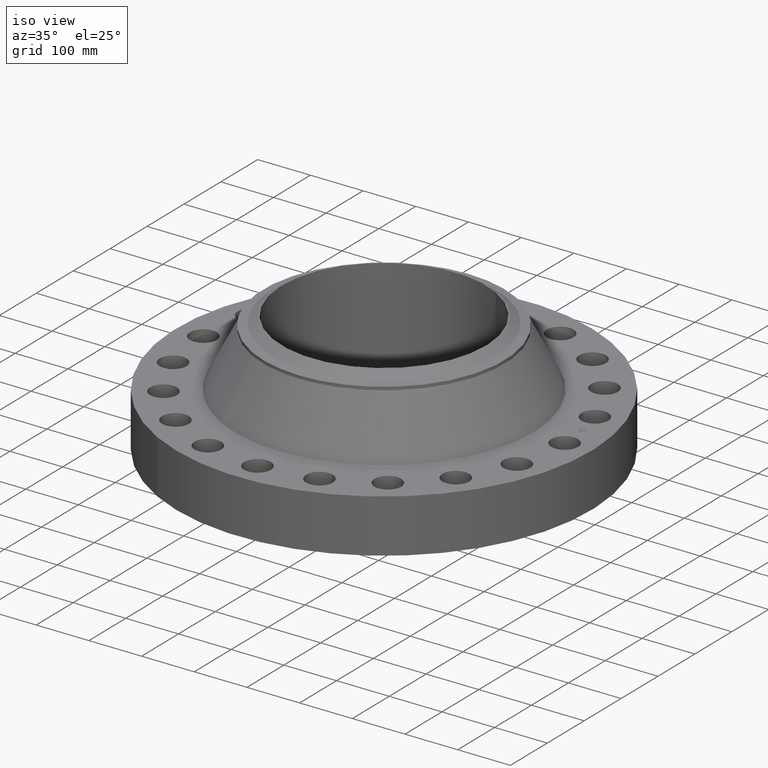
[diagram: clean part render]
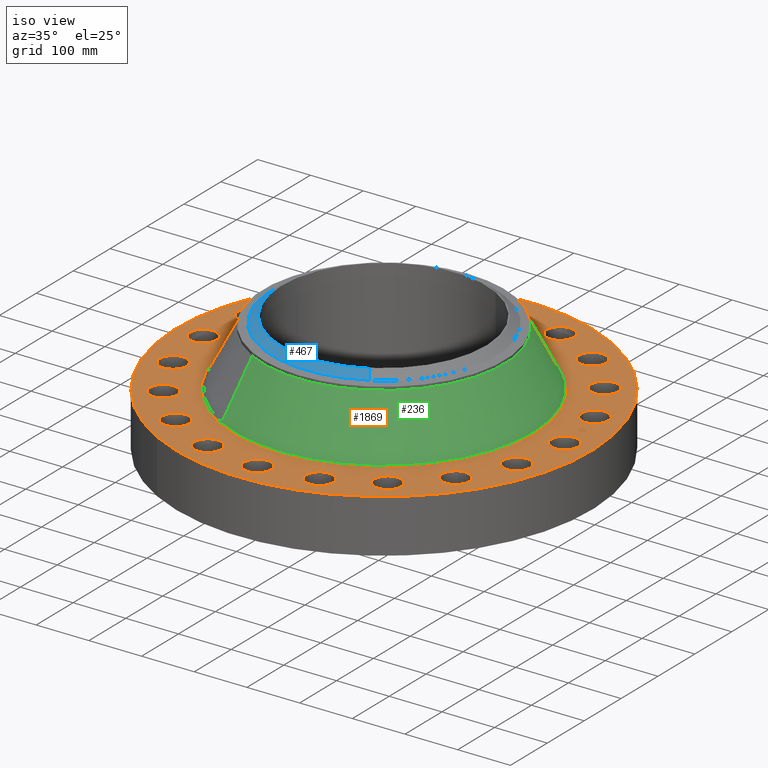
[diagram: same view with three faces highlighted in distinct colors, each labeled with its STEP entity id]
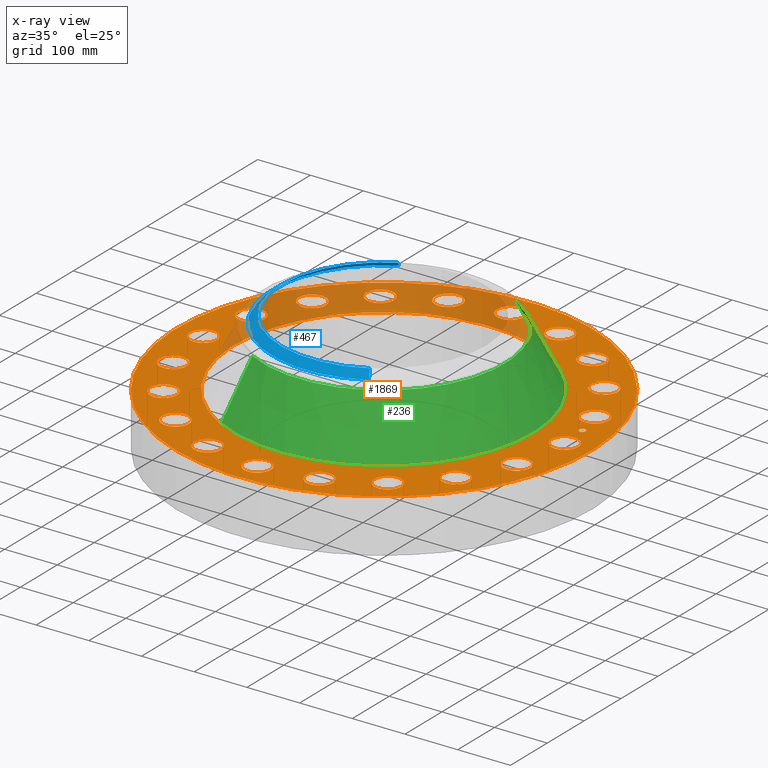
[diagram: x-ray of the same camera — body ghosted, the three highlighted faces saturated]
A machine part, iso view with three faces highlighted in distinct colors.
The next image is the same camera in x-ray (body ghosted, the three faces saturated) — at least one of them is partly hidden behind the body in this view.
Their STEP definitions:

[orange] entity #1869 — the highlighted planar face has unit normal (0, 0, -1).
#65=AXIS2_PLACEMENT_3D('Circle Axis2P3D',#63,#64,$) ;
#82=AXIS2_PLACEMENT_3D('Circle Axis2P3D',#80,#81,$) ;
#115=AXIS2_PLACEMENT_3D('Circle Axis2P3D',#113,#114,$) ;
#139=AXIS2_PLACEMENT_3D('Circle Axis2P3D',#137,#138,$) ;
#156=AXIS2_PLACEMENT_3D('Circle Axis2P3D',#154,#155,$) ;
#191=AXIS2_PLACEMENT_3D('Circle Axis2P3D',#189,#190,$) ;
#962=AXIS2_PLACEMENT_3D('Circle Axis2P3D',#960,#961,$) ;
#974=AXIS2_PLACEMENT_3D('Circle Axis2P3D',#972,#973,$) ;
#1005=AXIS2_PLACEMENT_3D('Circle Axis2P3D',#1003,#1004,$) ;
#1017=AXIS2_PLACEMENT_3D('Circle Axis2P3D',#1015,#1016,$) ;
#1048=AXIS2_PLACEMENT_3D('Circle Axis2P3D',#1046,#1047,$) ;
#1060=AXIS2_PLACEMENT_3D('Circle Axis2P3D',#1058,#1059,$) ;
#1091=AXIS2_PLACEMENT_3D('Circle Axis2P3D',#1089,#1090,$) ;
#1103=AXIS2_PLACEMENT_3D('Circle Axis2P3D',#1101,#1102,$) ;
#1134=AXIS2_PLACEMENT_3D('Circle Axis2P3D',#1132,#1133,$) ;
#1146=AXIS2_PLACEMENT_3D('Circle Axis2P3D',#1144,#1145,$) ;
#1177=AXIS2_PLACEMENT_3D('Circle Axis2P3D',#1175,#1176,$) ;
#1189=AXIS2_PLACEMENT_3D('Circle Axis2P3D',#1187,#1188,$) ;
#1220=AXIS2_PLACEMENT_3D('Circle Axis2P3D',#1218,#1219,$) ;
#1232=AXIS2_PLACEMENT_3D('Circle Axis2P3D',#1230,#1231,$) ;
#1263=AXIS2_PLACEMENT_3D('Circle Axis2P3D',#1261,#1262,$) ;
#1275=AXIS2_PLACEMENT_3D('Circle Axis2P3D',#1273,#1274,$) ;
#1306=AXIS2_PLACEMENT_3D('Circle Axis2P3D',#1304,#1305,$) ;
#1318=AXIS2_PLACEMENT_3D('Circle Axis2P3D',#1316,#1317,$) ;
#1349=AXIS2_PLACEMENT_3D('Circle Axis2P3D',#1347,#1348,$) ;
#1361=AXIS2_PLACEMENT_3D('Circle Axis2P3D',#1359,#1360,$) ;
#1392=AXIS2_PLACEMENT_3D('Circle Axis2P3D',#1390,#1391,$) ;
#1404=AXIS2_PLACEMENT_3D('Circle Axis2P3D',#1402,#1403,$) ;
#1435=AXIS2_PLACEMENT_3D('Circle Axis2P3D',#1433,#1434,$) ;
#1447=AXIS2_PLACEMENT_3D('Circle Axis2P3D',#1445,#1446,$) ;
#1478=AXIS2_PLACEMENT_3D('Circle Axis2P3D',#1476,#1477,$) ;
#1490=AXIS2_PLACEMENT_3D('Circle Axis2P3D',#1488,#1489,$) ;
#1521=AXIS2_PLACEMENT_3D('Circle Axis2P3D',#1519,#1520,$) ;
#1533=AXIS2_PLACEMENT_3D('Circle Axis2P3D',#1531,#1532,$) ;
#1564=AXIS2_PLACEMENT_3D('Circle Axis2P3D',#1562,#1563,$) ;
#1576=AXIS2_PLACEMENT_3D('Circle Axis2P3D',#1574,#1575,$) ;
#1607=AXIS2_PLACEMENT_3D('Circle Axis2P3D',#1605,#1606,$) ;
#1619=AXIS2_PLACEMENT_3D('Circle Axis2P3D',#1617,#1618,$) ;
#1650=AXIS2_PLACEMENT_3D('Circle Axis2P3D',#1648,#1649,$) ;
#1662=AXIS2_PLACEMENT_3D('Circle Axis2P3D',#1660,#1661,$) ;
#1693=AXIS2_PLACEMENT_3D('Circle Axis2P3D',#1691,#1692,$) ;
#1705=AXIS2_PLACEMENT_3D('Circle Axis2P3D',#1703,#1704,$) ;
#1736=AXIS2_PLACEMENT_3D('Circle Axis2P3D',#1734,#1735,$) ;
#1748=AXIS2_PLACEMENT_3D('Circle Axis2P3D',#1746,#1747,$) ;
#1761=AXIS2_PLACEMENT_3D('Plane Axis2P3D',#1758,#1759,#1760) ;
#1853=AXIS2_PLACEMENT_3D('Circle Axis2P3D',#1851,#1852,$) ;
#1862=AXIS2_PLACEMENT_3D('Circle Axis2P3D',#1860,#1861,$) ;
#46=CARTESIAN_POINT('Vertex',(12.6224174382,0.479425538606,4.00000000002)) ;
#60=CARTESIAN_POINT('Vertex',(14.3775825619,-0.479425538606,4.00000000002)) ;
#63=CARTESIAN_POINT('Axis2P3D Location',(13.5000000001,0.,4.00000000002)) ;
#80=CARTESIAN_POINT('Axis2P3D Location',(13.5000000001,0.,4.00000000002)) ;
#110=CARTESIAN_POINT('Vertex',(-7.43109584839,-13.6025297094,4.00000000002)) ;
#113=CARTESIAN_POINT('Axis2P3D Location',(0.,0.,4.00000000002)) ;
#117=CARTESIAN_POINT('Vertex',(7.43109584839,13.6025297094,4.00000000002)) ;
#137=CARTESIAN_POINT('Axis2P3D Location',(0.,0.,4.00000000002)) ;
#154=CARTESIAN_POINT('Axis2P3D Location',(0.,0.,4.00000000002)) ;
#158=CARTESIAN_POINT('Vertex',(5.36874508113,9.82742195202,4.00000000002)) ;
#160=CARTESIAN_POINT('Vertex',(-5.36874508113,-9.82742195202,4.00000000002)) ;
#189=CARTESIAN_POINT('Axis2P3D Location',(0.,0.,4.00000000002)) ;
#950=CARTESIAN_POINT('Vertex',(-12.1527829949,3.44458071592,4.00000000002)) ;
#957=CARTESIAN_POINT('Vertex',(-13.5257429451,4.89887813224,4.00000000002)) ;
#960=CARTESIAN_POINT('Axis2P3D Location',(-12.83926297,4.17172942408,4.00000000002)) ;
#972=CARTESIAN_POINT('Axis2P3D Location',(-12.83926297,4.17172942408,4.00000000002)) ;
#993=CARTESIAN_POINT('Vertex',(10.4935494787,-7.03140741016,4.00000000002)) ;
#1000=CARTESIAN_POINT('Vertex',(11.3499093695,-8.8387944018,4.00000000002)) ;
#1003=CARTESIAN_POINT('Axis2P3D Location',(10.9217294241,-7.93510090598,4.00000000002)) ;
#1015=CARTESIAN_POINT('Axis2P3D Location',(10.9217294241,-7.93510090598,4.00000000002)) ;
#1036=CARTESIAN_POINT('Vertex',(-10.4935494787,7.03140741016,4.00000000002)) ;
#1043=CARTESIAN_POINT('Vertex',(-11.3499093695,8.8387944018,4.00000000002)) ;
#1046=CARTESIAN_POINT('Axis2P3D Location',(-10.9217294241,7.93510090598,4.00000000002)) ;
#1058=CARTESIAN_POINT('Axis2P3D Location',(-10.9217294241,7.93510090598,4.00000000002)) ;
#1079=CARTESIAN_POINT('Vertex',(7.8071342267,-9.9299509564,4.00000000002)) ;
#1086=CARTESIAN_POINT('Vertex',(8.06306758526,-11.9135078918,4.00000000002)) ;
#1089=CARTESIAN_POINT('Axis2P3D Location',(7.93510090598,-10.9217294241,4.00000000002)) ;
#1101=CARTESIAN_POINT('Axis2P3D Location',(7.93510090598,-10.9217294241,4.00000000002)) ;
#1122=CARTESIAN_POINT('Vertex',(-7.8071342267,9.9299509564,4.00000000002)) ;
#1129=CARTESIAN_POINT('Vertex',(-8.06306758526,11.9135078918,4.00000000002)) ;
#1132=CARTESIAN_POINT('Axis2P3D Location',(-7.93510090598,10.9217294241,4.00000000002)) ;
#1144=CARTESIAN_POINT('Axis2P3D Location',(-7.93510090598,10.9217294241,4.00000000002)) ;
#1165=CARTESIAN_POINT('Vertex',(4.35650228106,-11.856481717,4.00000000002)) ;
#1172=CARTESIAN_POINT('Vertex',(3.9869565671,-13.8220442231,4.00000000002)) ;
#1175=CARTESIAN_POINT('Axis2P3D Location',(4.17172942408,-12.83926297,4.00000000002)) ;
#1187=CARTESIAN_POINT('Axis2P3D Location',(4.17172942408,-12.83926297,4.00000000002)) ;
#1208=CARTESIAN_POINT('Vertex',(-4.35650228106,11.856481717,4.00000000002)) ;
#1215=CARTESIAN_POINT('Vertex',(-3.9869565671,13.8220442231,4.00000000002)) ;
#1218=CARTESIAN_POINT('Axis2P3D Location',(-4.17172942408,12.83926297,4.00000000002)) ;
#1230=CARTESIAN_POINT('Axis2P3D Location',(-4.17172942408,12.83926297,4.00000000002)) ;
#1251=CARTESIAN_POINT('Vertex',(0.479425538606,-12.6224174382,4.00000000002)) ;
#1258=CARTESIAN_POINT('Vertex',(-0.479425538606,-14.3775825619,4.00000000002)) ;
#1261=CARTESIAN_POINT('Axis2P3D Location',(3.82423875593E-015,-13.5000000001,4.00000000002)) ;
#1273=CARTESIAN_POINT('Axis2P3D Location',(3.82423875593E-015,-13.5000000001,4.00000000002)) ;
#1294=CARTESIAN_POINT('Vertex',(-0.479425538606,12.6224174382,4.00000000002)) ;
#1301=CARTESIAN_POINT('Vertex',(0.479425538606,14.3775825619,4.00000000002)) ;
#1304=CARTESIAN_POINT('Axis2P3D Location',(-1.22323885579E-014,13.5000000001,4.00000000002)) ;
#1316=CARTESIAN_POINT('Axis2P3D Location',(-1.22323885579E-014,13.5000000001,4.00000000002)) ;
#1337=CARTESIAN_POINT('Vertex',(-3.44458071592,-12.1527829949,4.00000000002)) ;
#1344=CARTESIAN_POINT('Vertex',(-4.89887813224,-13.5257429451,4.00000000002)) ;
#1347=CARTESIAN_POINT('Axis2P3D Location',(-4.17172942408,-12.83926297,4.00000000002)) ;
#1359=CARTESIAN_POINT('Axis2P3D Location',(-4.17172942408,-12.83926297,4.00000000002)) ;
#1380=CARTESIAN_POINT('Vertex',(3.44458071592,12.1527829949,4.00000000002)) ;
#1387=CARTESIAN_POINT('Vertex',(4.89887813224,13.5257429451,4.00000000002)) ;
#1390=CARTESIAN_POINT('Axis2P3D Location',(4.17172942408,12.83926297,4.00000000002)) ;
#1402=CARTESIAN_POINT('Axis2P3D Location',(4.17172942408,12.83926297,4.00000000002)) ;
#1423=CARTESIAN_POINT('Vertex',(-7.03140741016,-10.4935494787,4.00000000002)) ;
#1430=CARTESIAN_POINT('Vertex',(-8.8387944018,-11.3499093695,4.00000000002)) ;
#1433=CARTESIAN_POINT('Axis2P3D Location',(-7.93510090598,-10.9217294241,4.00000000002)) ;
#1445=CARTESIAN_POINT('Axis2P3D Location',(-7.93510090598,-10.9217294241,4.00000000002)) ;
#1466=CARTESIAN_POINT('Vertex',(7.03140741016,10.4935494787,4.00000000002)) ;
#1473=CARTESIAN_POINT('Vertex',(8.8387944018,11.3499093695,4.00000000002)) ;
#1476=CARTESIAN_POINT('Axis2P3D Location',(7.93510090598,10.9217294241,4.00000000002)) ;
#1488=CARTESIAN_POINT('Axis2P3D Location',(7.93510090598,10.9217294241,4.00000000002)) ;
#1509=CARTESIAN_POINT('Vertex',(-9.9299509564,-7.8071342267,4.00000000002)) ;
#1516=CARTESIAN_POINT('Vertex',(-11.9135078918,-8.06306758526,4.00000000002)) ;
#1519=CARTESIAN_POINT('Axis2P3D Location',(-10.9217294241,-7.93510090598,4.00000000002)) ;
#1531=CARTESIAN_POINT('Axis2P3D Location',(-10.9217294241,-7.93510090598,4.00000000002)) ;
#1552=CARTESIAN_POINT('Vertex',(9.9299509564,7.8071342267,4.00000000002)) ;
#1559=CARTESIAN_POINT('Vertex',(11.9135078918,8.06306758526,4.00000000002)) ;
#1562=CARTESIAN_POINT('Axis2P3D Location',(10.9217294241,7.93510090598,4.00000000002)) ;
#1574=CARTESIAN_POINT('Axis2P3D Location',(10.9217294241,7.93510090598,4.00000000002)) ;
#1595=CARTESIAN_POINT('Vertex',(-11.856481717,-4.35650228106,4.00000000002)) ;
#1602=CARTESIAN_POINT('Vertex',(-13.8220442231,-3.9869565671,4.00000000002)) ;
#1605=CARTESIAN_POINT('Axis2P3D Location',(-12.83926297,-4.17172942408,4.00000000002)) ;
#1617=CARTESIAN_POINT('Axis2P3D Location',(-12.83926297,-4.17172942408,4.00000000002)) ;
#1638=CARTESIAN_POINT('Vertex',(11.856481717,4.35650228106,4.00000000002)) ;
#1645=CARTESIAN_POINT('Vertex',(13.8220442231,3.9869565671,4.00000000002)) ;
#1648=CARTESIAN_POINT('Axis2P3D Location',(12.83926297,4.17172942408,4.00000000002)) ;
#1660=CARTESIAN_POINT('Axis2P3D Location',(12.83926297,4.17172942408,4.00000000002)) ;
#1681=CARTESIAN_POINT('Vertex',(-12.6224174382,-0.479425538606,4.00000000002)) ;
#1688=CARTESIAN_POINT('Vertex',(-14.3775825619,0.479425538606,4.00000000002)) ;
#1691=CARTESIAN_POINT('Axis2P3D Location',(-13.5000000001,-7.64847751186E-015,4.00000000002)) ;
#1703=CARTESIAN_POINT('Axis2P3D Location',(-13.5000000001,-7.64847751186E-015,4.00000000002)) ;
#1724=CARTESIAN_POINT('Vertex',(12.1527829949,-3.44458071592,4.00000000002)) ;
#1731=CARTESIAN_POINT('Vertex',(13.5257429451,-4.89887813224,4.00000000002)) ;
#1734=CARTESIAN_POINT('Axis2P3D Location',(12.83926297,-4.17172942408,4.00000000002)) ;
#1746=CARTESIAN_POINT('Axis2P3D Location',(12.83926297,-4.17172942408,4.00000000002)) ;
#1758=CARTESIAN_POINT('Axis2P3D Location',(0.,15.5000000001,4.00000000002)) ;
#1851=CARTESIAN_POINT('Axis2P3D Location',(13.3337925981,2.11186527805,4.00000000002)) ;
#1855=CARTESIAN_POINT('Vertex',(13.295075068,2.35631814235,4.00000000002)) ;
#1857=CARTESIAN_POINT('Vertex',(13.3725101282,1.86741241375,4.00000000002)) ;
#1860=CARTESIAN_POINT('Axis2P3D Location',(13.3337925981,2.11186527805,4.00000000002)) ;
#64=DIRECTION('Axis2P3D Direction',(0.,-0.,-0.0393700787402)) ;
#81=DIRECTION('Axis2P3D Direction',(0.,-0.,-0.0393700787402)) ;
#114=DIRECTION('Axis2P3D Direction',(0.,0.,-0.0393700787402)) ;
#138=DIRECTION('Axis2P3D Direction',(0.,0.,-0.0393700787402)) ;
#155=DIRECTION('Axis2P3D Direction',(0.,0.,-0.0393700787402)) ;
#190=DIRECTION('Axis2P3D Direction',(0.,0.,-0.0393700787402)) ;
#961=DIRECTION('Axis2P3D Direction',(0.,0.,-0.0393700787402)) ;
#973=DIRECTION('Axis2P3D Direction',(0.,0.,-0.0393700787402)) ;
#1004=DIRECTION('Axis2P3D Direction',(0.,-0.,-0.0393700787402)) ;
#1016=DIRECTION('Axis2P3D Direction',(0.,-0.,-0.0393700787402)) ;
#1047=DIRECTION('Axis2P3D Direction',(0.,0.,-0.0393700787402)) ;
#1059=DIRECTION('Axis2P3D Direction',(0.,0.,-0.0393700787402)) ;
#1090=DIRECTION('Axis2P3D Direction',(0.,-0.,-0.0393700787402)) ;
#1102=DIRECTION('Axis2P3D Direction',(0.,-0.,-0.0393700787402)) ;
#1133=DIRECTION('Axis2P3D Direction',(0.,0.,-0.0393700787402)) ;
#1145=DIRECTION('Axis2P3D Direction',(0.,0.,-0.0393700787402)) ;
#1176=DIRECTION('Axis2P3D Direction',(0.,-0.,-0.0393700787402)) ;
#1188=DIRECTION('Axis2P3D Direction',(0.,-0.,-0.0393700787402)) ;
#1219=DIRECTION('Axis2P3D Direction',(0.,0.,-0.0393700787402)) ;
#1231=DIRECTION('Axis2P3D Direction',(0.,0.,-0.0393700787402)) ;
#1262=DIRECTION('Axis2P3D Direction',(0.,-0.,-0.0393700787402)) ;
#1274=DIRECTION('Axis2P3D Direction',(0.,-0.,-0.0393700787402)) ;
#1305=DIRECTION('Axis2P3D Direction',(0.,0.,-0.0393700787402)) ;
#1317=DIRECTION('Axis2P3D Direction',(0.,0.,-0.0393700787402)) ;
#1348=DIRECTION('Axis2P3D Direction',(-0.,0.,-0.0393700787402)) ;
#1360=DIRECTION('Axis2P3D Direction',(-0.,0.,-0.0393700787402)) ;
#1391=DIRECTION('Axis2P3D Direction',(0.,0.,-0.0393700787402)) ;
#1403=DIRECTION('Axis2P3D Direction',(0.,0.,-0.0393700787402)) ;
#1434=DIRECTION('Axis2P3D Direction',(-0.,0.,-0.0393700787402)) ;
#1446=DIRECTION('Axis2P3D Direction',(-0.,0.,-0.0393700787402)) ;
#1477=DIRECTION('Axis2P3D Direction',(0.,0.,-0.0393700787402)) ;
#1489=DIRECTION('Axis2P3D Direction',(0.,0.,-0.0393700787402)) ;
#1520=DIRECTION('Axis2P3D Direction',(-0.,0.,-0.0393700787402)) ;
#1532=DIRECTION('Axis2P3D Direction',(-0.,0.,-0.0393700787402)) ;
#1563=DIRECTION('Axis2P3D Direction',(0.,0.,-0.0393700787402)) ;
#1575=DIRECTION('Axis2P3D Direction',(0.,0.,-0.0393700787402)) ;
#1606=DIRECTION('Axis2P3D Direction',(-0.,0.,-0.0393700787402)) ;
#1618=DIRECTION('Axis2P3D Direction',(-0.,0.,-0.0393700787402)) ;
#1649=DIRECTION('Axis2P3D Direction',(0.,0.,-0.0393700787402)) ;
#1661=DIRECTION('Axis2P3D Direction',(0.,0.,-0.0393700787402)) ;
#1692=DIRECTION('Axis2P3D Direction',(-0.,0.,-0.0393700787402)) ;
#1704=DIRECTION('Axis2P3D Direction',(-0.,0.,-0.0393700787402)) ;
#1735=DIRECTION('Axis2P3D Direction',(0.,-0.,-0.0393700787402)) ;
#1747=DIRECTION('Axis2P3D Direction',(0.,-0.,-0.0393700787402)) ;
#1759=DIRECTION('Axis2P3D Direction',(0.,0.,-0.0393700787402)) ;
#1760=DIRECTION('Axis2P3D XDirection',(0.0393700787402,0.,0.)) ;
#1852=DIRECTION('Axis2P3D Direction',(0.,0.,-0.0393700787402)) ;
#1861=DIRECTION('Axis2P3D Direction',(0.,0.,-0.0393700787402)) ;
#1764=ORIENTED_EDGE('',*,*,#141,.F.) ;
#1765=ORIENTED_EDGE('',*,*,#119,.F.) ;
#1768=ORIENTED_EDGE('',*,*,#67,.T.) ;
#1769=ORIENTED_EDGE('',*,*,#84,.T.) ;
#1772=ORIENTED_EDGE('',*,*,#193,.T.) ;
#1773=ORIENTED_EDGE('',*,*,#162,.T.) ;
#1776=ORIENTED_EDGE('',*,*,#1750,.T.) ;
#1777=ORIENTED_EDGE('',*,*,#1738,.T.) ;
#1780=ORIENTED_EDGE('',*,*,#1019,.T.) ;
#1781=ORIENTED_EDGE('',*,*,#1007,.T.) ;
#1784=ORIENTED_EDGE('',*,*,#1105,.T.) ;
#1785=ORIENTED_EDGE('',*,*,#1093,.T.) ;
#1788=ORIENTED_EDGE('',*,*,#1191,.T.) ;
#1789=ORIENTED_EDGE('',*,*,#1179,.T.) ;
#1792=ORIENTED_EDGE('',*,*,#1277,.T.) ;
#1793=ORIENTED_EDGE('',*,*,#1265,.T.) ;
#1796=ORIENTED_EDGE('',*,*,#1363,.T.) ;
#1797=ORIENTED_EDGE('',*,*,#1351,.T.) ;
#1800=ORIENTED_EDGE('',*,*,#1449,.T.) ;
#1801=ORIENTED_EDGE('',*,*,#1437,.T.) ;
#1804=ORIENTED_EDGE('',*,*,#1535,.T.) ;
#1805=ORIENTED_EDGE('',*,*,#1523,.T.) ;
#1808=ORIENTED_EDGE('',*,*,#1621,.T.) ;
#1809=ORIENTED_EDGE('',*,*,#1609,.T.) ;
#1812=ORIENTED_EDGE('',*,*,#1707,.T.) ;
#1813=ORIENTED_EDGE('',*,*,#1695,.T.) ;
#1816=ORIENTED_EDGE('',*,*,#976,.T.) ;
#1817=ORIENTED_EDGE('',*,*,#964,.T.) ;
#1820=ORIENTED_EDGE('',*,*,#1062,.T.) ;
#1821=ORIENTED_EDGE('',*,*,#1050,.T.) ;
#1824=ORIENTED_EDGE('',*,*,#1148,.T.) ;
#1825=ORIENTED_EDGE('',*,*,#1136,.T.) ;
#1828=ORIENTED_EDGE('',*,*,#1234,.T.) ;
#1829=ORIENTED_EDGE('',*,*,#1222,.T.) ;
#1832=ORIENTED_EDGE('',*,*,#1320,.T.) ;
#1833=ORIENTED_EDGE('',*,*,#1308,.T.) ;
#1836=ORIENTED_EDGE('',*,*,#1406,.T.) ;
#1837=ORIENTED_EDGE('',*,*,#1394,.T.) ;
#1840=ORIENTED_EDGE('',*,*,#1492,.T.) ;
#1841=ORIENTED_EDGE('',*,*,#1480,.T.) ;
#1844=ORIENTED_EDGE('',*,*,#1578,.T.) ;
#1845=ORIENTED_EDGE('',*,*,#1566,.T.) ;
#1848=ORIENTED_EDGE('',*,*,#1664,.T.) ;
#1849=ORIENTED_EDGE('',*,*,#1652,.T.) ;
#1866=ORIENTED_EDGE('',*,*,#1859,.T.) ;
#1867=ORIENTED_EDGE('',*,*,#1864,.T.) ;
#1770=FACE_BOUND('',#1767,.T.) ;
#1774=FACE_BOUND('',#1771,.T.) ;
#1778=FACE_BOUND('',#1775,.T.) ;
#1782=FACE_BOUND('',#1779,.T.) ;
#1786=FACE_BOUND('',#1783,.T.) ;
#1790=FACE_BOUND('',#1787,.T.) ;
#1794=FACE_BOUND('',#1791,.T.) ;
#1798=FACE_BOUND('',#1795,.T.) ;
#1802=FACE_BOUND('',#1799,.T.) ;
#1806=FACE_BOUND('',#1803,.T.) ;
#1810=FACE_BOUND('',#1807,.T.) ;
#1814=FACE_BOUND('',#1811,.T.) ;
#1818=FACE_BOUND('',#1815,.T.) ;
#1822=FACE_BOUND('',#1819,.T.) ;
#1826=FACE_BOUND('',#1823,.T.) ;
#1830=FACE_BOUND('',#1827,.T.) ;
#1834=FACE_BOUND('',#1831,.T.) ;
#1838=FACE_BOUND('',#1835,.T.) ;
#1842=FACE_BOUND('',#1839,.T.) ;
#1846=FACE_BOUND('',#1843,.T.) ;
#1850=FACE_BOUND('',#1847,.T.) ;
#1868=FACE_BOUND('',#1865,.T.) ;
#1869=ADVANCED_FACE('PartBody',(#1766,#1770,#1774,#1778,#1782,#1786,#1790,#1794,#1798,#1802,#1806,#1810,#1814,#1818,#1822,#1826,#1830,#1834,#1838,#1842,#1846,#1850,#1868),#1762,.F.) ;
#66=CIRCLE('generated circle',#65,1.) ;
#83=CIRCLE('generated circle',#82,1.) ;
#116=CIRCLE('generated circle',#115,15.5000000001) ;
#140=CIRCLE('generated circle',#139,15.5000000001) ;
#157=CIRCLE('generated circle',#156,11.1982876356) ;
#192=CIRCLE('generated circle',#191,11.1982876356) ;
#963=CIRCLE('generated circle',#962,1.) ;
#975=CIRCLE('generated circle',#974,1.) ;
#1006=CIRCLE('generated circle',#1005,1.) ;
#1018=CIRCLE('generated circle',#1017,1.) ;
#1049=CIRCLE('generated circle',#1048,1.) ;
#1061=CIRCLE('generated circle',#1060,1.) ;
#1092=CIRCLE('generated circle',#1091,1.) ;
#1104=CIRCLE('generated circle',#1103,1.) ;
#1135=CIRCLE('generated circle',#1134,1.) ;
#1147=CIRCLE('generated circle',#1146,1.) ;
#1178=CIRCLE('generated circle',#1177,1.) ;
#1190=CIRCLE('generated circle',#1189,1.) ;
#1221=CIRCLE('generated circle',#1220,1.) ;
#1233=CIRCLE('generated circle',#1232,1.) ;
#1264=CIRCLE('generated circle',#1263,1.) ;
#1276=CIRCLE('generated circle',#1275,1.) ;
#1307=CIRCLE('generated circle',#1306,1.) ;
#1319=CIRCLE('generated circle',#1318,1.) ;
#1350=CIRCLE('generated circle',#1349,1.) ;
#1362=CIRCLE('generated circle',#1361,1.) ;
#1393=CIRCLE('generated circle',#1392,1.) ;
#1405=CIRCLE('generated circle',#1404,1.) ;
#1436=CIRCLE('generated circle',#1435,1.) ;
#1448=CIRCLE('generated circle',#1447,1.) ;
#1479=CIRCLE('generated circle',#1478,1.) ;
#1491=CIRCLE('generated circle',#1490,1.) ;
#1522=CIRCLE('generated circle',#1521,1.) ;
#1534=CIRCLE('generated circle',#1533,1.) ;
#1565=CIRCLE('generated circle',#1564,1.) ;
#1577=CIRCLE('generated circle',#1576,1.) ;
#1608=CIRCLE('generated circle',#1607,1.) ;
#1620=CIRCLE('generated circle',#1619,1.) ;
#1651=CIRCLE('generated circle',#1650,1.) ;
#1663=CIRCLE('generated circle',#1662,1.) ;
#1694=CIRCLE('generated circle',#1693,1.) ;
#1706=CIRCLE('generated circle',#1705,1.) ;
#1737=CIRCLE('generated circle',#1736,1.) ;
#1749=CIRCLE('generated circle',#1748,1.) ;
#1854=CIRCLE('generated circle',#1853,0.247500000001) ;
#1863=CIRCLE('generated circle',#1862,0.247500000001) ;
#67=EDGE_CURVE('',#47,#61,#66,.T.) ;
#84=EDGE_CURVE('',#61,#47,#83,.T.) ;
#119=EDGE_CURVE('',#111,#118,#116,.T.) ;
#141=EDGE_CURVE('',#118,#111,#140,.T.) ;
#162=EDGE_CURVE('',#159,#161,#157,.T.) ;
#193=EDGE_CURVE('',#161,#159,#192,.T.) ;
#964=EDGE_CURVE('',#951,#958,#963,.T.) ;
#976=EDGE_CURVE('',#958,#951,#975,.T.) ;
#1007=EDGE_CURVE('',#994,#1001,#1006,.T.) ;
#1019=EDGE_CURVE('',#1001,#994,#1018,.T.) ;
#1050=EDGE_CURVE('',#1037,#1044,#1049,.T.) ;
#1062=EDGE_CURVE('',#1044,#1037,#1061,.T.) ;
#1093=EDGE_CURVE('',#1080,#1087,#1092,.T.) ;
#1105=EDGE_CURVE('',#1087,#1080,#1104,.T.) ;
#1136=EDGE_CURVE('',#1123,#1130,#1135,.T.) ;
#1148=EDGE_CURVE('',#1130,#1123,#1147,.T.) ;
#1179=EDGE_CURVE('',#1166,#1173,#1178,.T.) ;
#1191=EDGE_CURVE('',#1173,#1166,#1190,.T.) ;
#1222=EDGE_CURVE('',#1209,#1216,#1221,.T.) ;
#1234=EDGE_CURVE('',#1216,#1209,#1233,.T.) ;
#1265=EDGE_CURVE('',#1252,#1259,#1264,.T.) ;
#1277=EDGE_CURVE('',#1259,#1252,#1276,.T.) ;
#1308=EDGE_CURVE('',#1295,#1302,#1307,.T.) ;
#1320=EDGE_CURVE('',#1302,#1295,#1319,.T.) ;
#1351=EDGE_CURVE('',#1338,#1345,#1350,.T.) ;
#1363=EDGE_CURVE('',#1345,#1338,#1362,.T.) ;
#1394=EDGE_CURVE('',#1381,#1388,#1393,.T.) ;
#1406=EDGE_CURVE('',#1388,#1381,#1405,.T.) ;
#1437=EDGE_CURVE('',#1424,#1431,#1436,.T.) ;
#1449=EDGE_CURVE('',#1431,#1424,#1448,.T.) ;
#1480=EDGE_CURVE('',#1467,#1474,#1479,.T.) ;
#1492=EDGE_CURVE('',#1474,#1467,#1491,.T.) ;
#1523=EDGE_CURVE('',#1510,#1517,#1522,.T.) ;
#1535=EDGE_CURVE('',#1517,#1510,#1534,.T.) ;
#1566=EDGE_CURVE('',#1553,#1560,#1565,.T.) ;
#1578=EDGE_CURVE('',#1560,#1553,#1577,.T.) ;
#1609=EDGE_CURVE('',#1596,#1603,#1608,.T.) ;
#1621=EDGE_CURVE('',#1603,#1596,#1620,.T.) ;
#1652=EDGE_CURVE('',#1639,#1646,#1651,.T.) ;
#1664=EDGE_CURVE('',#1646,#1639,#1663,.T.) ;
#1695=EDGE_CURVE('',#1682,#1689,#1694,.T.) ;
#1707=EDGE_CURVE('',#1689,#1682,#1706,.T.) ;
#1738=EDGE_CURVE('',#1725,#1732,#1737,.T.) ;
#1750=EDGE_CURVE('',#1732,#1725,#1749,.T.) ;
#1859=EDGE_CURVE('',#1856,#1858,#1854,.T.) ;
#1864=EDGE_CURVE('',#1858,#1856,#1863,.T.) ;
#1763=EDGE_LOOP('',(#1764,#1765)) ;
#1767=EDGE_LOOP('',(#1768,#1769)) ;
#1771=EDGE_LOOP('',(#1772,#1773)) ;
#1775=EDGE_LOOP('',(#1776,#1777)) ;
#1779=EDGE_LOOP('',(#1780,#1781)) ;
#1783=EDGE_LOOP('',(#1784,#1785)) ;
#1787=EDGE_LOOP('',(#1788,#1789)) ;
#1791=EDGE_LOOP('',(#1792,#1793)) ;
#1795=EDGE_LOOP('',(#1796,#1797)) ;
#1799=EDGE_LOOP('',(#1800,#1801)) ;
#1803=EDGE_LOOP('',(#1804,#1805)) ;
#1807=EDGE_LOOP('',(#1808,#1809)) ;
#1811=EDGE_LOOP('',(#1812,#1813)) ;
#1815=EDGE_LOOP('',(#1816,#1817)) ;
#1819=EDGE_LOOP('',(#1820,#1821)) ;
#1823=EDGE_LOOP('',(#1824,#1825)) ;
#1827=EDGE_LOOP('',(#1828,#1829)) ;
#1831=EDGE_LOOP('',(#1832,#1833)) ;
#1835=EDGE_LOOP('',(#1836,#1837)) ;
#1839=EDGE_LOOP('',(#1840,#1841)) ;
#1843=EDGE_LOOP('',(#1844,#1845)) ;
#1847=EDGE_LOOP('',(#1848,#1849)) ;
#1865=EDGE_LOOP('',(#1866,#1867)) ;
#1766=FACE_OUTER_BOUND('',#1763,.T.) ;
#1762=PLANE('',#1761) ;
#47=VERTEX_POINT('',#46) ;
#61=VERTEX_POINT('',#60) ;
#111=VERTEX_POINT('',#110) ;
#118=VERTEX_POINT('',#117) ;
#159=VERTEX_POINT('',#158) ;
#161=VERTEX_POINT('',#160) ;
#951=VERTEX_POINT('',#950) ;
#958=VERTEX_POINT('',#957) ;
#994=VERTEX_POINT('',#993) ;
#1001=VERTEX_POINT('',#1000) ;
#1037=VERTEX_POINT('',#1036) ;
#1044=VERTEX_POINT('',#1043) ;
#1080=VERTEX_POINT('',#1079) ;
#1087=VERTEX_POINT('',#1086) ;
#1123=VERTEX_POINT('',#1122) ;
#1130=VERTEX_POINT('',#1129) ;
#1166=VERTEX_POINT('',#1165) ;
#1173=VERTEX_POINT('',#1172) ;
#1209=VERTEX_POINT('',#1208) ;
#1216=VERTEX_POINT('',#1215) ;
#1252=VERTEX_POINT('',#1251) ;
#1259=VERTEX_POINT('',#1258) ;
#1295=VERTEX_POINT('',#1294) ;
#1302=VERTEX_POINT('',#1301) ;
#1338=VERTEX_POINT('',#1337) ;
#1345=VERTEX_POINT('',#1344) ;
#1381=VERTEX_POINT('',#1380) ;
#1388=VERTEX_POINT('',#1387) ;
#1424=VERTEX_POINT('',#1423) ;
#1431=VERTEX_POINT('',#1430) ;
#1467=VERTEX_POINT('',#1466) ;
#1474=VERTEX_POINT('',#1473) ;
#1510=VERTEX_POINT('',#1509) ;
#1517=VERTEX_POINT('',#1516) ;
#1553=VERTEX_POINT('',#1552) ;
#1560=VERTEX_POINT('',#1559) ;
#1596=VERTEX_POINT('',#1595) ;
#1603=VERTEX_POINT('',#1602) ;
#1639=VERTEX_POINT('',#1638) ;
#1646=VERTEX_POINT('',#1645) ;
#1682=VERTEX_POINT('',#1681) ;
#1689=VERTEX_POINT('',#1688) ;
#1725=VERTEX_POINT('',#1724) ;
#1732=VERTEX_POINT('',#1731) ;
#1856=VERTEX_POINT('',#1855) ;
#1858=VERTEX_POINT('',#1857) ;

[blue] entity #467 — the highlighted conical surface has half-angle 52.5 deg.
#356=AXIS2_PLACEMENT_3D('Circle Axis2P3D',#354,#355,$) ;
#385=AXIS2_PLACEMENT_3D('Cone Axis2P3D',#382,#383,#384) ;
#458=AXIS2_PLACEMENT_3D('Circle Axis2P3D',#456,#457,$) ;
#349=CARTESIAN_POINT('Vertex',(3.69336977428,-6.76066802357,9.00000000004)) ;
#351=CARTESIAN_POINT('Vertex',(-3.69336977428,6.76066802357,9.00000000004)) ;
#354=CARTESIAN_POINT('Axis2P3D Location',(0.,0.,9.00000000004)) ;
#382=CARTESIAN_POINT('Axis2P3D Location',(0.,0.,9.00000000004)) ;
#387=CARTESIAN_POINT('Line Origine',(3.84831107683,-7.04428617547,8.7520143726)) ;
#391=CARTESIAN_POINT('Vertex',(4.00325237938,-7.32790432737,8.50402874517)) ;
#398=CARTESIAN_POINT('Vertex',(-4.00325237938,7.32790432737,8.50402874517)) ;
#401=CARTESIAN_POINT('Line Origine',(-3.84831107683,7.04428617547,8.7520143726)) ;
#456=CARTESIAN_POINT('Axis2P3D Location',(0.,0.,8.50402874517)) ;
#355=DIRECTION('Axis2P3D Direction',(0.,0.,-0.0393700787402)) ;
#383=DIRECTION('Axis2P3D Direction',(-0.,-0.,-0.0393700787402)) ;
#384=DIRECTION('Axis2P3D XDirection',(0.0188750212049,-0.0345504945626,0.)) ;
#388=DIRECTION('Vector Direction',(0.014974561121,-0.02741075027,-0.023966985394)) ;
#402=DIRECTION('Vector Direction',(-0.014974561121,0.02741075027,-0.023966985394)) ;
#457=DIRECTION('Axis2P3D Direction',(0.,0.,-0.0393700787402)) ;
#389=VECTOR('Line Direction',#388,0.0393700787402) ;
#403=VECTOR('Line Direction',#402,0.0393700787402) ;
#462=ORIENTED_EDGE('',*,*,#358,.F.) ;
#463=ORIENTED_EDGE('',*,*,#405,.T.) ;
#464=ORIENTED_EDGE('',*,*,#460,.T.) ;
#465=ORIENTED_EDGE('',*,*,#393,.F.) ;
#467=ADVANCED_FACE('PartBody',(#466),#386,.T.) ;
#357=CIRCLE('generated circle',#356,7.70374015751) ;
#459=CIRCLE('generated circle',#458,8.35010248106) ;
#386=CONICAL_SURFACE('Cone',#385,7.70374015751,0.916297857297) ;
#358=EDGE_CURVE('',#352,#350,#357,.F.) ;
#393=EDGE_CURVE('',#350,#392,#390,.T.) ;
#405=EDGE_CURVE('',#352,#399,#404,.T.) ;
#460=EDGE_CURVE('',#399,#392,#459,.F.) ;
#461=EDGE_LOOP('',(#462,#463,#464,#465)) ;
#466=FACE_OUTER_BOUND('',#461,.T.) ;
#390=LINE('Line',#387,#389) ;
#404=LINE('Line',#401,#403) ;
#350=VERTEX_POINT('',#349) ;
#352=VERTEX_POINT('',#351) ;
#392=VERTEX_POINT('',#391) ;
#399=VERTEX_POINT('',#398) ;

[green] entity #236 — the highlighted conical surface has half-angle 27.173 deg.
#172=AXIS2_PLACEMENT_3D('Circle Axis2P3D',#170,#171,$) ;
#209=AXIS2_PLACEMENT_3D('Cone Axis2P3D',#206,#207,#208) ;
#220=AXIS2_PLACEMENT_3D('Circle Axis2P3D',#218,#219,$) ;
#167=CARTESIAN_POINT('Vertex',(5.31756346161,9.73373462591,4.0651992085)) ;
#170=CARTESIAN_POINT('Axis2P3D Location',(0.,0.,4.0651992085)) ;
#174=CARTESIAN_POINT('Vertex',(-5.31756346161,-9.73373462591,4.0651992085)) ;
#206=CARTESIAN_POINT('Axis2P3D Location',(0.,0.,8.13966275738)) ;
#211=CARTESIAN_POINT('Line Origine',(4.81619665453,8.81598884148,6.10243098294)) ;
#215=CARTESIAN_POINT('Vertex',(4.31482984746,7.89824305704,8.13966275738)) ;
#218=CARTESIAN_POINT('Axis2P3D Location',(0.,0.,8.13966275738)) ;
#222=CARTESIAN_POINT('Vertex',(-4.31482984746,-7.89824305704,8.13966275738)) ;
#225=CARTESIAN_POINT('Line Origine',(-4.81619665453,-8.81598884148,6.10243098294)) ;
#171=DIRECTION('Axis2P3D Direction',(0.,0.,-0.0393700787402)) ;
#207=DIRECTION('Axis2P3D Direction',(0.,0.,-0.0393700787402)) ;
#208=DIRECTION('Axis2P3D XDirection',(-0.0188750212049,-0.0345504945626,0.)) ;
#212=DIRECTION('Vector Direction',(0.00861971751626,0.0157782870781,-0.0350249800403)) ;
#219=DIRECTION('Axis2P3D Direction',(0.,0.,-0.0393700787402)) ;
#226=DIRECTION('Vector Direction',(-0.00861971751626,-0.0157782870781,-0.0350249800403)) ;
#213=VECTOR('Line Direction',#212,0.0393700787402) ;
#227=VECTOR('Line Direction',#226,0.0393700787402) ;
#231=ORIENTED_EDGE('',*,*,#176,.F.) ;
#232=ORIENTED_EDGE('',*,*,#217,.T.) ;
#233=ORIENTED_EDGE('',*,*,#224,.T.) ;
#234=ORIENTED_EDGE('',*,*,#229,.F.) ;
#236=ADVANCED_FACE('PartBody',(#235),#210,.T.) ;
#173=CIRCLE('generated circle',#172,11.0915314964) ;
#221=CIRCLE('generated circle',#220,9.00000000004) ;
#210=CONICAL_SURFACE('Cone',#209,9.00000000004,0.47425215097) ;
#176=EDGE_CURVE('',#168,#175,#173,.T.) ;
#217=EDGE_CURVE('',#168,#216,#214,.F.) ;
#224=EDGE_CURVE('',#216,#223,#221,.T.) ;
#229=EDGE_CURVE('',#175,#223,#228,.F.) ;
#230=EDGE_LOOP('',(#231,#232,#233,#234)) ;
#235=FACE_OUTER_BOUND('',#230,.T.) ;
#214=LINE('Line',#211,#213) ;
#228=LINE('Line',#225,#227) ;
#168=VERTEX_POINT('',#167) ;
#175=VERTEX_POINT('',#174) ;
#216=VERTEX_POINT('',#215) ;
#223=VERTEX_POINT('',#222) ;